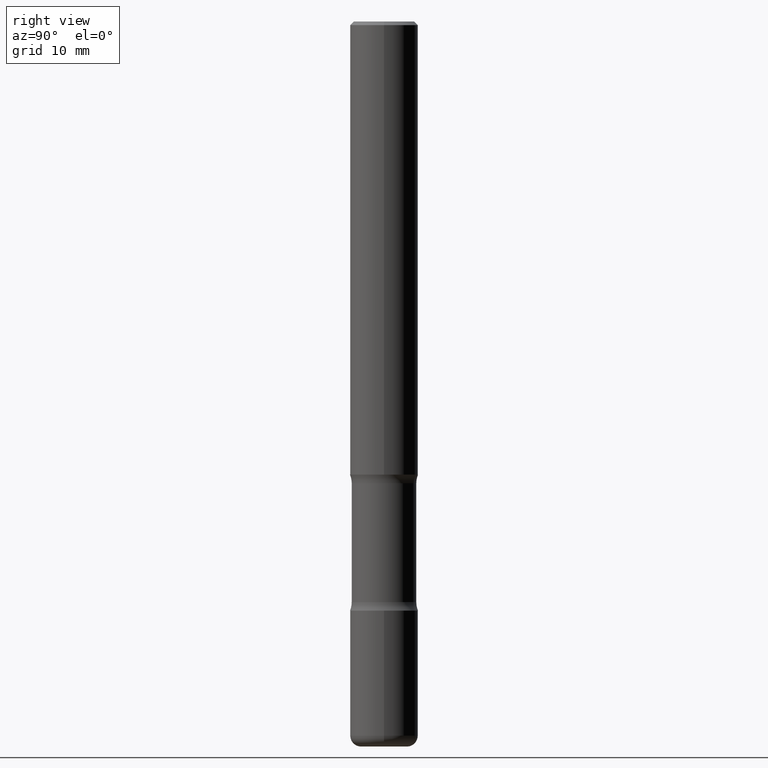
[diagram: clean part render]
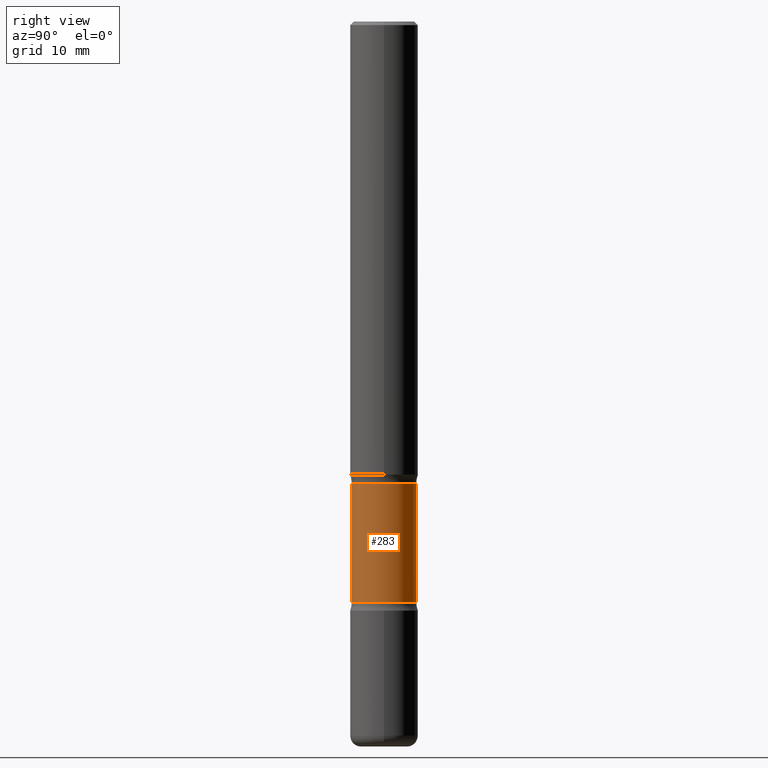
[diagram: same view with one face highlighted and labeled with its STEP entity id]
A machine part, right view. The second image highlights one B-rep face of the part: STEP entity #283.
In plain terms, the highlighted cylindrical surface (edge-blend (fillet) strip) has radius 4.5244 mm, axis along (0, -0, -1).
Its self-contained STEP definition (entity closure, byte-faithful):
#10 = ORIENTED_EDGE ( 'NONE', *, *, #202, .F. ) ;
#23 = VECTOR ( 'NONE', #156, 39.37007874015748143 ) ;
#24 = CIRCLE ( 'NONE', #303, 0.1781249999999999500 ) ;
#27 = LINE ( 'NONE', #551, #118 ) ;
#29 = DIRECTION ( 'NONE',  ( 6.982962677686265133E-15, 1.000000000000000000, -3.067338098149349483E-15 ) ) ;
#68 = CARTESIAN_POINT ( 'NONE',  ( 1.243840226962964471E-15, 0.1781249999999861278, -4.000000000000000888 ) ) ;
#73 = VERTEX_POINT ( 'NONE', #309 ) ;
#95 = CARTESIAN_POINT ( 'NONE',  ( 6.150289227201164007E-29, -9.008429421428009851E-15, -2.547495887979908780 ) ) ;
#97 = ORIENTED_EDGE ( 'NONE', *, *, #270, .T. ) ;
#102 = DIRECTION ( 'NONE',  ( 6.982962677686266711E-15, 1.000000000000000000, -3.067338098149349089E-15 ) ) ;
#118 = VECTOR ( 'NONE', #449, 39.37007874015748143 ) ;
#129 = EDGE_CURVE ( 'NONE', #73, #286, #180, .T. ) ;
#132 = ORIENTED_EDGE ( 'NONE', *, *, #469, .T. ) ;
#149 = VERTEX_POINT ( 'NONE', #278 ) ;
#154 = CARTESIAN_POINT ( 'NONE',  ( 7.826246762236988201E-29, -1.118918372292999451E-14, -3.202504112020091664 ) ) ;
#156 = DIRECTION ( 'NONE',  ( 2.558681667686983511E-29, -3.329354077496592524E-15, -1.000000000000000000 ) ) ;
#180 = CIRCLE ( 'NONE', #212, 0.1781249999999999223 ) ;
#202 = EDGE_CURVE ( 'NONE', #461, #73, #236, .T. ) ;
#212 = AXIS2_PLACEMENT_3D ( 'NONE', #154, #453, #29 ) ;
#236 = LINE ( 'NONE', #68, #23 ) ;
#243 = DIRECTION ( 'NONE',  ( 2.558681667686983511E-29, -3.329354077496592524E-15, -1.000000000000000000 ) ) ;
#270 = EDGE_CURVE ( 'NONE', #149, #286, #27, .T. ) ;
#278 = CARTESIAN_POINT ( 'NONE',  ( -1.254184790217547253E-15, -0.1781250000000089706, -2.547495887979908336 ) ) ;
#283 = ADVANCED_FACE ( 'NONE', ( #503 ), #463, .T. ) ;
#286 = VERTEX_POINT ( 'NONE', #415 ) ;
#303 = AXIS2_PLACEMENT_3D ( 'NONE', #95, #346, #102 ) ;
#309 = CARTESIAN_POINT ( 'NONE',  ( 1.243840226962943961E-15, 0.1781249999999887368, -3.202504112020092553 ) ) ;
#346 = DIRECTION ( 'NONE',  ( 2.558681667686983511E-29, -3.329354077496592524E-15, -1.000000000000000000 ) ) ;
#362 = DIRECTION ( 'NONE',  ( 6.982962677686266711E-15, 1.000000000000000000, -3.067338098149349089E-15 ) ) ;
#415 = CARTESIAN_POINT ( 'NONE',  ( -1.254184790217529307E-15, -0.1781250000000111355, -3.202504112020091220 ) ) ;
#420 = EDGE_LOOP ( 'NONE', ( #132, #97, #555, #10 ) ) ;
#433 = CARTESIAN_POINT ( 'NONE',  ( 1.243840226962927197E-15, 0.1781249999999909572, -2.547495887979909224 ) ) ;
#449 = DIRECTION ( 'NONE',  ( 2.558681667686983511E-29, -3.329354077496592524E-15, -1.000000000000000000 ) ) ;
#453 = DIRECTION ( 'NONE',  ( 2.558681667686983511E-29, -3.329354077496592524E-15, -1.000000000000000000 ) ) ;
#461 = VERTEX_POINT ( 'NONE', #433 ) ;
#463 = CYLINDRICAL_SURFACE ( 'NONE', #481, 0.1781249999999999500 ) ;
#469 = EDGE_CURVE ( 'NONE', #461, #149, #24, .T. ) ;
#481 = AXIS2_PLACEMENT_3D ( 'NONE', #541, #243, #362 ) ;
#503 = FACE_OUTER_BOUND ( 'NONE', #420, .T. ) ;
#541 = CARTESIAN_POINT ( 'NONE',  ( 9.866784870866931853E-29, -1.384432990936266734E-14, -4.000000000000000000 ) ) ;
#551 = CARTESIAN_POINT ( 'NONE',  ( -1.222026205852954821E-15, -0.1781250000000138001, -3.999999999999999556 ) ) ;
#555 = ORIENTED_EDGE ( 'NONE', *, *, #129, .F. ) ;